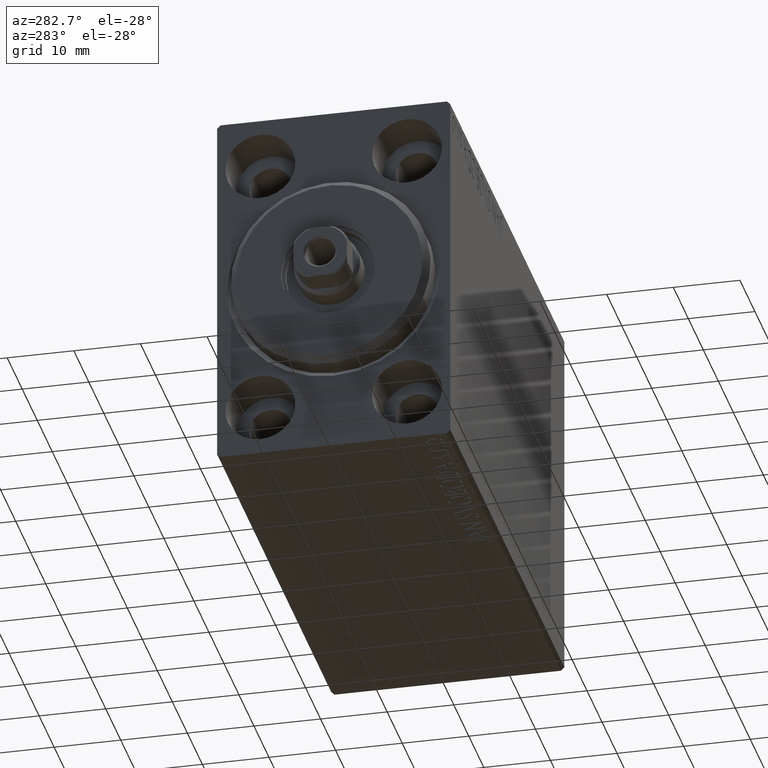
[diagram: clean part render]
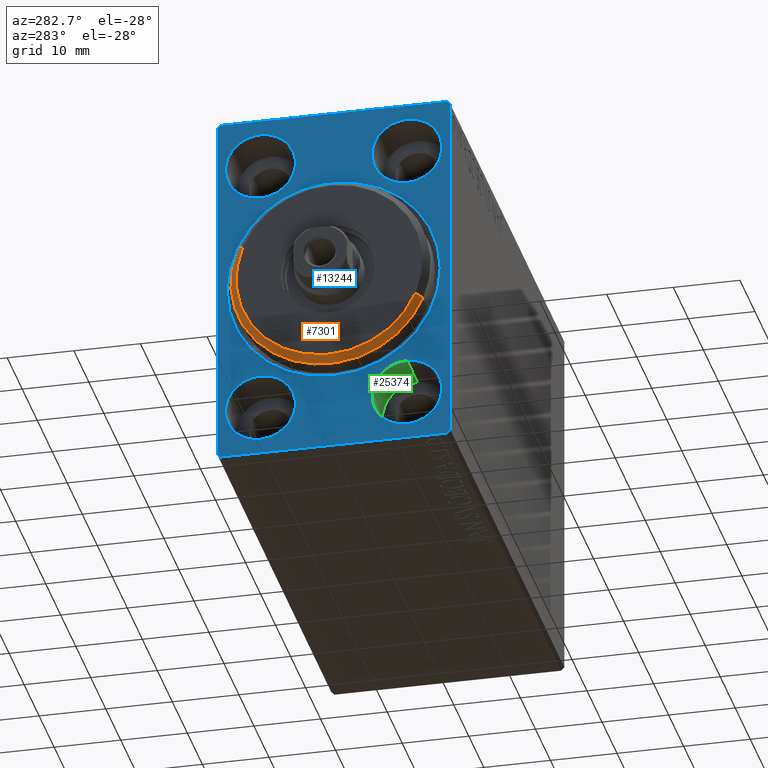
[diagram: same view with three faces highlighted in distinct colors, each labeled with its STEP entity id]
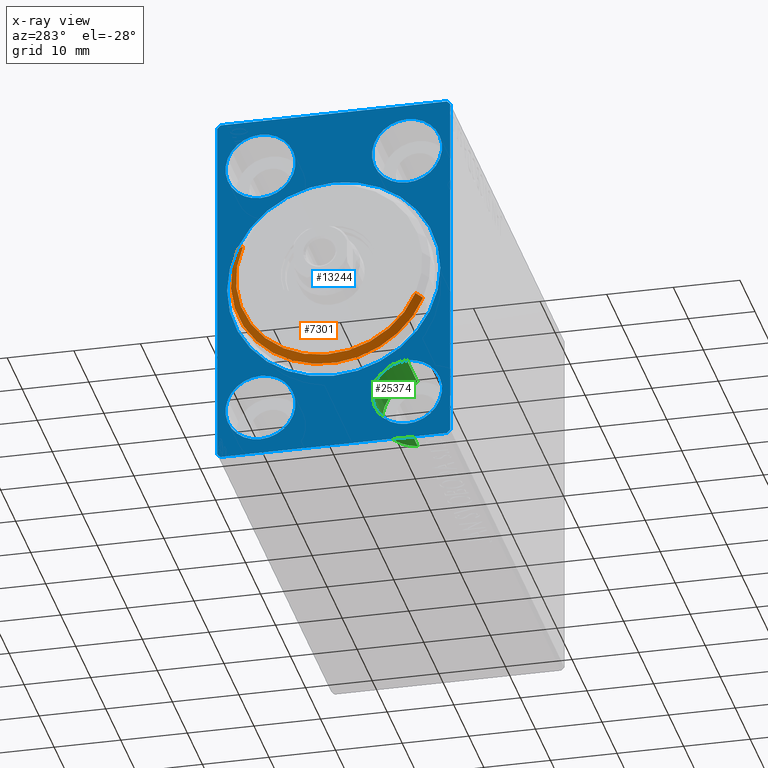
[diagram: x-ray of the same camera — body ghosted, the three highlighted faces saturated]
A machine part, auxiliary view with three faces highlighted in distinct colors.
The next image is the same camera in x-ray (body ghosted, the three faces saturated) — at least one of them is partly hidden behind the body in this view.
Their STEP definitions:

[orange] entity #7301 — the highlighted conical surface has half-angle 45 deg.
#272 = AXIS2_PLACEMENT_3D ( 'NONE', #19315, #5992, #42836 ) ;
#689 = VERTEX_POINT ( 'NONE', #29659 ) ;
#3453 = EDGE_CURVE ( 'NONE', #3816, #41143, #7987, .T. ) ;
#3816 = VERTEX_POINT ( 'NONE', #20330 ) ;
#5336 = CARTESIAN_POINT ( 'NONE',  ( 3.000000000000000000, 0.000000000000000000, 0.000000000000000000 ) ) ;
#5384 = VECTOR ( 'NONE', #23247, 999.9999999999998863 ) ;
#5764 = FACE_OUTER_BOUND ( 'NONE', #27287, .T. ) ;
#5992 = DIRECTION ( 'NONE',  ( -1.000000000000000000, 0.000000000000000000, 0.000000000000000000 ) ) ;
#7301 = ADVANCED_FACE ( 'NONE', ( #5764 ), #43905, .T. ) ;
#7987 = LINE ( 'NONE', #28190, #28839 ) ;
#10771 = CARTESIAN_POINT ( 'NONE',  ( 1.999999999999995781, 0.000000000000000000, 15.00000000000000000 ) ) ;
#11911 = ORIENTED_EDGE ( 'NONE', *, *, #3453, .F. ) ;
#12074 = ORIENTED_EDGE ( 'NONE', *, *, #24086, .F. ) ;
#12810 = LINE ( 'NONE', #42553, #5384 ) ;
#14400 = AXIS2_PLACEMENT_3D ( 'NONE', #14627, #42359, #21736 ) ;
#14627 = CARTESIAN_POINT ( 'NONE',  ( 3.000000000000000000, 0.000000000000000000, 0.000000000000000000 ) ) ;
#15602 = CARTESIAN_POINT ( 'NONE',  ( 3.000000000000000000, 1.775737858763662015E-15, -13.99999999999999645 ) ) ;
#18870 = DIRECTION ( 'NONE',  ( 0.000000000000000000, 0.000000000000000000, 1.000000000000000000 ) ) ;
#18946 = ORIENTED_EDGE ( 'NONE', *, *, #21428, .F. ) ;
#19315 = CARTESIAN_POINT ( 'NONE',  ( 1.999999999999995781, 0.000000000000000000, 0.000000000000000000 ) ) ;
#20330 = CARTESIAN_POINT ( 'NONE',  ( 3.000000000000000000, 0.000000000000000000, 13.99999999999999645 ) ) ;
#21428 = EDGE_CURVE ( 'NONE', #24592, #3816, #34227, .T. ) ;
#21736 = DIRECTION ( 'NONE',  ( 0.000000000000000000, 0.000000000000000000, -1.000000000000000000 ) ) ;
#21751 = DIRECTION ( 'NONE',  ( -0.7071067811865482389, 0.000000000000000000, 0.7071067811865469066 ) ) ;
#22659 = AXIS2_PLACEMENT_3D ( 'NONE', #5336, #36383, #18870 ) ;
#23247 = DIRECTION ( 'NONE',  ( -0.7071067811865482389, 8.659560562354926695E-17, -0.7071067811865469066 ) ) ;
#24086 = EDGE_CURVE ( 'NONE', #41143, #689, #33612, .T. ) ;
#24592 = VERTEX_POINT ( 'NONE', #15602 ) ;
#27287 = EDGE_LOOP ( 'NONE', ( #18946, #30788, #12074, #11911 ) ) ;
#28190 = CARTESIAN_POINT ( 'NONE',  ( 3.000000000000000000, 0.000000000000000000, 13.99999999999999645 ) ) ;
#28839 = VECTOR ( 'NONE', #21751, 999.9999999999998863 ) ;
#29327 = EDGE_CURVE ( 'NONE', #24592, #689, #12810, .T. ) ;
#29659 = CARTESIAN_POINT ( 'NONE',  ( 1.999999999999995781, 1.836970198721029589E-15, -15.00000000000000000 ) ) ;
#30788 = ORIENTED_EDGE ( 'NONE', *, *, #29327, .T. ) ;
#33612 = CIRCLE ( 'NONE', #272, 15.00000000000000000 ) ;
#34227 = CIRCLE ( 'NONE', #14400, 13.99999999999999645 ) ;
#36383 = DIRECTION ( 'NONE',  ( -1.000000000000000000, 0.000000000000000000, 0.000000000000000000 ) ) ;
#41143 = VERTEX_POINT ( 'NONE', #10771 ) ;
#42359 = DIRECTION ( 'NONE',  ( 1.000000000000000000, -0.000000000000000000, 0.000000000000000000 ) ) ;
#42553 = CARTESIAN_POINT ( 'NONE',  ( 3.000000000000000000, 1.714505518806294244E-15, -13.99999999999999645 ) ) ;
#42836 = DIRECTION ( 'NONE',  ( 0.000000000000000000, 0.000000000000000000, -1.000000000000000000 ) ) ;
#43905 = CONICAL_SURFACE ( 'NONE', #22659, 13.99999999999999645, 0.7853981633974473908 ) ;

[blue] entity #13244 — the highlighted planar face has unit normal (1, 0, 0).
#795 = EDGE_CURVE ( 'NONE', #22448, #39961, #15193, .T. ) ;
#875 = DIRECTION ( 'NONE',  ( -1.000000000000000000, 0.000000000000000000, 0.000000000000000000 ) ) ;
#1468 = VECTOR ( 'NONE', #38831, 1000.000000000000114 ) ;
#1495 = DIRECTION ( 'NONE',  ( 0.000000000000000000, 0.000000000000000000, -1.000000000000000000 ) ) ;
#1570 = AXIS2_PLACEMENT_3D ( 'NONE', #3988, #875, #34387 ) ;
#1776 = EDGE_CURVE ( 'NONE', #6416, #13975, #30773, .T. ) ;
#2337 = EDGE_CURVE ( 'NONE', #12014, #24352, #18323, .T. ) ;
#2428 = CIRCLE ( 'NONE', #42826, 5.250000000000000888 ) ;
#3218 = FACE_BOUND ( 'NONE', #30657, .T. ) ;
#3432 = ORIENTED_EDGE ( 'NONE', *, *, #12959, .T. ) ;
#3827 = AXIS2_PLACEMENT_3D ( 'NONE', #17806, #24712, #21143 ) ;
#3875 = FACE_OUTER_BOUND ( 'NONE', #37636, .T. ) ;
#3980 = EDGE_CURVE ( 'NONE', #42905, #38104, #41606, .T. ) ;
#3988 = CARTESIAN_POINT ( 'NONE',  ( 0.000000000000000000, 11.00000000000000355, 20.00000000000000000 ) ) ;
#4113 = ORIENTED_EDGE ( 'NONE', *, *, #17300, .F. ) ;
#4154 = ORIENTED_EDGE ( 'NONE', *, *, #39955, .T. ) ;
#4402 = EDGE_CURVE ( 'NONE', #14114, #24352, #21251, .T. ) ;
#4443 = CARTESIAN_POINT ( 'NONE',  ( 0.000000000000000000, 0.000000000000000000, 16.00000000000002842 ) ) ;
#4518 = CARTESIAN_POINT ( 'NONE',  ( 0.000000000000000000, -11.00000000000000355, -20.00000000000000000 ) ) ;
#4874 = DIRECTION ( 'NONE',  ( 0.000000000000000000, 0.000000000000000000, 1.000000000000000000 ) ) ;
#5027 = CIRCLE ( 'NONE', #35465, 16.00000000000002842 ) ;
#5033 = CARTESIAN_POINT ( 'NONE',  ( 0.000000000000000000, 11.00000000000000355, -14.75000000000000000 ) ) ;
#5321 = DIRECTION ( 'NONE',  ( 1.000000000000000000, 0.000000000000000000, 0.000000000000000000 ) ) ;
#5998 = CARTESIAN_POINT ( 'NONE',  ( 0.000000000000000000, -16.99999999999998579, 27.49999999999999645 ) ) ;
#6138 = VECTOR ( 'NONE', #1495, 1000.000000000000000 ) ;
#6416 = VERTEX_POINT ( 'NONE', #39762 ) ;
#6826 = AXIS2_PLACEMENT_3D ( 'NONE', #41201, #42085, #19004 ) ;
#6987 = PLANE ( 'NONE',  #10759 ) ;
#7911 = AXIS2_PLACEMENT_3D ( 'NONE', #4518, #24727, #14282 ) ;
#8367 = ORIENTED_EDGE ( 'NONE', *, *, #30627, .F. ) ;
#8764 = DIRECTION ( 'NONE',  ( 0.000000000000000000, 0.000000000000000000, 1.000000000000000000 ) ) ;
#8841 = EDGE_CURVE ( 'NONE', #12014, #27658, #14087, .T. ) ;
#9155 = ORIENTED_EDGE ( 'NONE', *, *, #14922, .F. ) ;
#10759 = AXIS2_PLACEMENT_3D ( 'NONE', #36947, #16754, #43830 ) ;
#11207 = CARTESIAN_POINT ( 'NONE',  ( 0.000000000000000000, 17.50000000000000711, -27.50000000000000355 ) ) ;
#11314 = LINE ( 'NONE', #21970, #1468 ) ;
#11468 = CARTESIAN_POINT ( 'NONE',  ( 0.000000000000000000, 17.50000000000000000, 27.00000000000000355 ) ) ;
#11999 = DIRECTION ( 'NONE',  ( 0.000000000000000000, -1.000000000000000000, -1.982541115402065110E-16 ) ) ;
#12014 = VERTEX_POINT ( 'NONE', #32102 ) ;
#12959 = EDGE_CURVE ( 'NONE', #42905, #27658, #23485, .T. ) ;
#13244 = ADVANCED_FACE ( 'NONE', ( #30307, #3218, #23431, #40505, #17407, #3875 ), #6987, .F. ) ;
#13467 = DIRECTION ( 'NONE',  ( -0.000000000000000000, 0.7071067811865474617, 0.7071067811865474617 ) ) ;
#13918 = CARTESIAN_POINT ( 'NONE',  ( 0.000000000000000000, 17.50000000000000711, -27.00000000000000355 ) ) ;
#13975 = VERTEX_POINT ( 'NONE', #4443 ) ;
#14087 = LINE ( 'NONE', #40947, #29103 ) ;
#14093 = CARTESIAN_POINT ( 'NONE',  ( 0.000000000000000000, 11.00000000000000355, -20.00000000000000000 ) ) ;
#14114 = VERTEX_POINT ( 'NONE', #43248 ) ;
#14282 = DIRECTION ( 'NONE',  ( 0.000000000000000000, 0.000000000000000000, 1.000000000000000000 ) ) ;
#14922 = EDGE_CURVE ( 'NONE', #36980, #24918, #32620, .T. ) ;
#15100 = VERTEX_POINT ( 'NONE', #27497 ) ;
#15193 = CIRCLE ( 'NONE', #28667, 5.250000000000000888 ) ;
#15226 = ORIENTED_EDGE ( 'NONE', *, *, #795, .F. ) ;
#15523 = CARTESIAN_POINT ( 'NONE',  ( 0.000000000000000000, 0.000000000000000000, 0.000000000000000000 ) ) ;
#15839 = CARTESIAN_POINT ( 'NONE',  ( 0.000000000000000000, -11.00000000000000355, 20.00000000000000000 ) ) ;
#16021 = CIRCLE ( 'NONE', #6826, 5.250000000000000888 ) ;
#16093 = ORIENTED_EDGE ( 'NONE', *, *, #39790, .T. ) ;
#16430 = ORIENTED_EDGE ( 'NONE', *, *, #35008, .F. ) ;
#16442 = CARTESIAN_POINT ( 'NONE',  ( 0.000000000000000000, 11.00000000000000355, -20.00000000000000000 ) ) ;
#16744 = VECTOR ( 'NONE', #34941, 1000.000000000000000 ) ;
#16754 = DIRECTION ( 'NONE',  ( 1.000000000000000000, 0.000000000000000000, 0.000000000000000000 ) ) ;
#17081 = EDGE_LOOP ( 'NONE', ( #8367, #41263 ) ) ;
#17300 = EDGE_CURVE ( 'NONE', #15100, #32168, #41235, .T. ) ;
#17407 = FACE_BOUND ( 'NONE', #22808, .T. ) ;
#17806 = CARTESIAN_POINT ( 'NONE',  ( 0.000000000000000000, 0.000000000000000000, 0.000000000000000000 ) ) ;
#18099 = DIRECTION ( 'NONE',  ( -0.000000000000000000, -0.7071067811865378028, 0.7071067811865573427 ) ) ;
#18323 = LINE ( 'NONE', #28320, #25137 ) ;
#18629 = CARTESIAN_POINT ( 'NONE',  ( 0.000000000000000000, -11.00000000000000355, 20.00000000000000000 ) ) ;
#19004 = DIRECTION ( 'NONE',  ( 0.000000000000000000, 0.000000000000000000, 1.000000000000000000 ) ) ;
#19862 = ORIENTED_EDGE ( 'NONE', *, *, #35625, .F. ) ;
#20992 = CIRCLE ( 'NONE', #31643, 5.250000000000000888 ) ;
#21143 = DIRECTION ( 'NONE',  ( 0.000000000000000000, 0.000000000000000000, -1.000000000000000000 ) ) ;
#21251 = LINE ( 'NONE', #41665, #6138 ) ;
#21529 = CARTESIAN_POINT ( 'NONE',  ( 0.000000000000000000, 11.00000000000000355, 14.75000000000000000 ) ) ;
#21970 = CARTESIAN_POINT ( 'NONE',  ( 0.000000000000000000, 17.00000000000000000, 27.50000000000000355 ) ) ;
#22192 = DIRECTION ( 'NONE',  ( 0.000000000000000000, 0.000000000000000000, -1.000000000000000000 ) ) ;
#22414 = CARTESIAN_POINT ( 'NONE',  ( 0.000000000000000000, -11.00000000000000355, 25.25000000000000000 ) ) ;
#22448 = VERTEX_POINT ( 'NONE', #5033 ) ;
#22470 = ORIENTED_EDGE ( 'NONE', *, *, #3980, .F. ) ;
#22808 = EDGE_LOOP ( 'NONE', ( #4113, #16430 ) ) ;
#22827 = AXIS2_PLACEMENT_3D ( 'NONE', #18629, #35266, #4874 ) ;
#23431 = FACE_BOUND ( 'NONE', #17081, .T. ) ;
#23474 = ORIENTED_EDGE ( 'NONE', *, *, #42493, .T. ) ;
#23485 = LINE ( 'NONE', #13918, #39131 ) ;
#23516 = EDGE_CURVE ( 'NONE', #39961, #22448, #2428, .T. ) ;
#23666 = DIRECTION ( 'NONE',  ( 0.000000000000000000, 1.000000000000000000, 0.000000000000000000 ) ) ;
#24352 = VERTEX_POINT ( 'NONE', #30727 ) ;
#24435 = CARTESIAN_POINT ( 'NONE',  ( 0.000000000000000000, 17.00000000000000711, -27.50000000000000355 ) ) ;
#24564 = ORIENTED_EDGE ( 'NONE', *, *, #8841, .F. ) ;
#24712 = DIRECTION ( 'NONE',  ( 1.000000000000000000, 0.000000000000000000, 0.000000000000000000 ) ) ;
#24727 = DIRECTION ( 'NONE',  ( -1.000000000000000000, 0.000000000000000000, 0.000000000000000000 ) ) ;
#24918 = VERTEX_POINT ( 'NONE', #5998 ) ;
#25137 = VECTOR ( 'NONE', #18099, 1000.000000000000000 ) ;
#25799 = DIRECTION ( 'NONE',  ( 0.000000000000000000, 0.000000000000000000, 1.000000000000000000 ) ) ;
#26134 = ORIENTED_EDGE ( 'NONE', *, *, #1776, .T. ) ;
#27497 = CARTESIAN_POINT ( 'NONE',  ( 0.000000000000000000, -11.00000000000000355, -14.75000000000000000 ) ) ;
#27638 = DIRECTION ( 'NONE',  ( -1.000000000000000000, 0.000000000000000000, 0.000000000000000000 ) ) ;
#27658 = VERTEX_POINT ( 'NONE', #24435 ) ;
#27886 = VERTEX_POINT ( 'NONE', #22414 ) ;
#28195 = CARTESIAN_POINT ( 'NONE',  ( 0.000000000000000000, -11.00000000000000355, -25.25000000000000000 ) ) ;
#28320 = CARTESIAN_POINT ( 'NONE',  ( 0.000000000000000000, -17.00000000000001421, -27.50000000000000355 ) ) ;
#28667 = AXIS2_PLACEMENT_3D ( 'NONE', #16442, #29996, #35158 ) ;
#28838 = AXIS2_PLACEMENT_3D ( 'NONE', #42647, #32657, #25799 ) ;
#29103 = VECTOR ( 'NONE', #23666, 1000.000000000000000 ) ;
#29215 = CIRCLE ( 'NONE', #1570, 5.250000000000000888 ) ;
#29252 = CARTESIAN_POINT ( 'NONE',  ( 0.000000000000000000, 17.00000000000000000, 27.50000000000000355 ) ) ;
#29996 = DIRECTION ( 'NONE',  ( -1.000000000000000000, 0.000000000000000000, 0.000000000000000000 ) ) ;
#30307 = FACE_BOUND ( 'NONE', #40185, .T. ) ;
#30627 = EDGE_CURVE ( 'NONE', #27886, #33722, #20992, .T. ) ;
#30657 = EDGE_LOOP ( 'NONE', ( #15226, #38388 ) ) ;
#30727 = CARTESIAN_POINT ( 'NONE',  ( 0.000000000000000000, -17.50000000000000000, -27.00000000000000355 ) ) ;
#30773 = CIRCLE ( 'NONE', #3827, 16.00000000000002842 ) ;
#31350 = CARTESIAN_POINT ( 'NONE',  ( 0.000000000000000000, 11.00000000000000355, 25.25000000000000000 ) ) ;
#31643 = AXIS2_PLACEMENT_3D ( 'NONE', #15839, #38929, #8764 ) ;
#32102 = CARTESIAN_POINT ( 'NONE',  ( 0.000000000000000000, -17.00000000000001421, -27.50000000000000355 ) ) ;
#32168 = VERTEX_POINT ( 'NONE', #28195 ) ;
#32189 = VERTEX_POINT ( 'NONE', #21529 ) ;
#32399 = CARTESIAN_POINT ( 'NONE',  ( 0.000000000000000000, 11.00000000000000355, -25.25000000000000000 ) ) ;
#32620 = LINE ( 'NONE', #35506, #37030 ) ;
#32657 = DIRECTION ( 'NONE',  ( -1.000000000000000000, 0.000000000000000000, 0.000000000000000000 ) ) ;
#33067 = VERTEX_POINT ( 'NONE', #31350 ) ;
#33722 = VERTEX_POINT ( 'NONE', #37151 ) ;
#34387 = DIRECTION ( 'NONE',  ( 0.000000000000000000, 0.000000000000000000, 1.000000000000000000 ) ) ;
#34535 = DIRECTION ( 'NONE',  ( 0.000000000000000000, -0.7071067811865474617, -0.7071067811865474617 ) ) ;
#34941 = DIRECTION ( 'NONE',  ( 0.000000000000000000, -1.261617073437677752E-16, 1.000000000000000000 ) ) ;
#35008 = EDGE_CURVE ( 'NONE', #32168, #15100, #16021, .T. ) ;
#35158 = DIRECTION ( 'NONE',  ( 0.000000000000000000, 0.000000000000000000, 1.000000000000000000 ) ) ;
#35266 = DIRECTION ( 'NONE',  ( -1.000000000000000000, 0.000000000000000000, 0.000000000000000000 ) ) ;
#35465 = AXIS2_PLACEMENT_3D ( 'NONE', #15523, #5321, #22192 ) ;
#35506 = CARTESIAN_POINT ( 'NONE',  ( 0.000000000000000000, 17.50000000000000000, 27.50000000000000355 ) ) ;
#35625 = EDGE_CURVE ( 'NONE', #32189, #33067, #35909, .T. ) ;
#35909 = CIRCLE ( 'NONE', #28838, 5.250000000000000888 ) ;
#36761 = LINE ( 'NONE', #43862, #42628 ) ;
#36947 = CARTESIAN_POINT ( 'NONE',  ( 0.000000000000000000, 0.000000000000000000, 0.000000000000000000 ) ) ;
#36980 = VERTEX_POINT ( 'NONE', #29252 ) ;
#37030 = VECTOR ( 'NONE', #11999, 1000.000000000000000 ) ;
#37151 = CARTESIAN_POINT ( 'NONE',  ( 0.000000000000000000, -11.00000000000000355, 14.75000000000000000 ) ) ;
#37636 = EDGE_LOOP ( 'NONE', ( #41695, #23474, #9155, #16093, #22470, #3432, #24564, #41392 ) ) ;
#38104 = VERTEX_POINT ( 'NONE', #11468 ) ;
#38388 = ORIENTED_EDGE ( 'NONE', *, *, #23516, .F. ) ;
#38677 = EDGE_LOOP ( 'NONE', ( #43435, #19862 ) ) ;
#38831 = DIRECTION ( 'NONE',  ( -0.000000000000000000, 0.7071067811865474617, -0.7071067811865474617 ) ) ;
#38929 = DIRECTION ( 'NONE',  ( -1.000000000000000000, 0.000000000000000000, 0.000000000000000000 ) ) ;
#39116 = CIRCLE ( 'NONE', #22827, 5.250000000000000888 ) ;
#39131 = VECTOR ( 'NONE', #34535, 1000.000000000000114 ) ;
#39762 = CARTESIAN_POINT ( 'NONE',  ( 0.000000000000000000, 1.959434878635768681E-15, -16.00000000000002842 ) ) ;
#39790 = EDGE_CURVE ( 'NONE', #36980, #38104, #11314, .T. ) ;
#39955 = EDGE_CURVE ( 'NONE', #13975, #6416, #5027, .T. ) ;
#39961 = VERTEX_POINT ( 'NONE', #32399 ) ;
#40185 = EDGE_LOOP ( 'NONE', ( #4154, #26134 ) ) ;
#40505 = FACE_BOUND ( 'NONE', #38677, .T. ) ;
#40947 = CARTESIAN_POINT ( 'NONE',  ( 0.000000000000000000, -17.50000000000000000, -27.50000000000000355 ) ) ;
#41163 = DIRECTION ( 'NONE',  ( 0.000000000000000000, 0.000000000000000000, 1.000000000000000000 ) ) ;
#41201 = CARTESIAN_POINT ( 'NONE',  ( 0.000000000000000000, -11.00000000000000355, -20.00000000000000000 ) ) ;
#41235 = CIRCLE ( 'NONE', #7911, 5.250000000000000888 ) ;
#41263 = ORIENTED_EDGE ( 'NONE', *, *, #43508, .F. ) ;
#41392 = ORIENTED_EDGE ( 'NONE', *, *, #2337, .T. ) ;
#41606 = LINE ( 'NONE', #11207, #16744 ) ;
#41665 = CARTESIAN_POINT ( 'NONE',  ( 0.000000000000000000, -17.50000000000000000, 27.49999999999999645 ) ) ;
#41695 = ORIENTED_EDGE ( 'NONE', *, *, #4402, .F. ) ;
#42085 = DIRECTION ( 'NONE',  ( -1.000000000000000000, 0.000000000000000000, 0.000000000000000000 ) ) ;
#42493 = EDGE_CURVE ( 'NONE', #14114, #24918, #36761, .T. ) ;
#42617 = CARTESIAN_POINT ( 'NONE',  ( 0.000000000000000000, 17.50000000000000711, -27.00000000000000355 ) ) ;
#42628 = VECTOR ( 'NONE', #13467, 1000.000000000000114 ) ;
#42647 = CARTESIAN_POINT ( 'NONE',  ( 0.000000000000000000, 11.00000000000000355, 20.00000000000000000 ) ) ;
#42826 = AXIS2_PLACEMENT_3D ( 'NONE', #14093, #27638, #41163 ) ;
#42905 = VERTEX_POINT ( 'NONE', #42617 ) ;
#43248 = CARTESIAN_POINT ( 'NONE',  ( 0.000000000000000000, -17.50000000000000000, 26.99999999999998224 ) ) ;
#43391 = EDGE_CURVE ( 'NONE', #33067, #32189, #29215, .T. ) ;
#43435 = ORIENTED_EDGE ( 'NONE', *, *, #43391, .F. ) ;
#43508 = EDGE_CURVE ( 'NONE', #33722, #27886, #39116, .T. ) ;
#43830 = DIRECTION ( 'NONE',  ( 0.000000000000000000, 0.000000000000000000, -1.000000000000000000 ) ) ;
#43862 = CARTESIAN_POINT ( 'NONE',  ( 0.000000000000000000, -17.50000000000000000, 26.99999999999998224 ) ) ;

[green] entity #25374 — the highlighted cylindrical surface (edge-blend (fillet) strip) has radius 5.25 mm, axis along (-1, -0, -0).
#131 = DIRECTION ( 'NONE',  ( -1.000000000000000000, 0.000000000000000000, 0.000000000000000000 ) ) ;
#2826 = DIRECTION ( 'NONE',  ( 0.000000000000000000, 0.000000000000000000, 1.000000000000000000 ) ) ;
#3161 = AXIS2_PLACEMENT_3D ( 'NONE', #12395, #33452, #2826 ) ;
#3589 = EDGE_CURVE ( 'NONE', #37557, #32168, #34339, .T. ) ;
#4518 = CARTESIAN_POINT ( 'NONE',  ( 0.000000000000000000, -11.00000000000000355, -20.00000000000000000 ) ) ;
#4971 = ORIENTED_EDGE ( 'NONE', *, *, #14560, .T. ) ;
#7830 = LINE ( 'NONE', #34894, #22847 ) ;
#7911 = AXIS2_PLACEMENT_3D ( 'NONE', #4518, #24727, #14282 ) ;
#8701 = VERTEX_POINT ( 'NONE', #9679 ) ;
#9523 = EDGE_CURVE ( 'NONE', #8701, #37557, #17762, .T. ) ;
#9679 = CARTESIAN_POINT ( 'NONE',  ( 7.000000000000000000, -11.00000000000000355, -14.75000000000000000 ) ) ;
#9714 = FACE_OUTER_BOUND ( 'NONE', #35062, .T. ) ;
#12395 = CARTESIAN_POINT ( 'NONE',  ( 7.000000000000000000, -11.00000000000000355, -20.00000000000000000 ) ) ;
#13157 = ORIENTED_EDGE ( 'NONE', *, *, #3589, .F. ) ;
#13893 = DIRECTION ( 'NONE',  ( -1.000000000000000000, -0.000000000000000000, -0.000000000000000000 ) ) ;
#14282 = DIRECTION ( 'NONE',  ( 0.000000000000000000, 0.000000000000000000, 1.000000000000000000 ) ) ;
#14316 = DIRECTION ( 'NONE',  ( 0.000000000000000000, 0.000000000000000000, 1.000000000000000000 ) ) ;
#14560 = EDGE_CURVE ( 'NONE', #8701, #15100, #7830, .T. ) ;
#15100 = VERTEX_POINT ( 'NONE', #27497 ) ;
#17300 = EDGE_CURVE ( 'NONE', #15100, #32168, #41235, .T. ) ;
#17762 = CIRCLE ( 'NONE', #22023, 5.250000000000000888 ) ;
#20761 = CARTESIAN_POINT ( 'NONE',  ( 7.000000000000000000, -11.00000000000000355, -20.00000000000000000 ) ) ;
#22023 = AXIS2_PLACEMENT_3D ( 'NONE', #20761, #131, #14316 ) ;
#22847 = VECTOR ( 'NONE', #13893, 1000.000000000000000 ) ;
#24727 = DIRECTION ( 'NONE',  ( -1.000000000000000000, 0.000000000000000000, 0.000000000000000000 ) ) ;
#25374 = ADVANCED_FACE ( 'NONE', ( #9714 ), #39895, .F. ) ;
#26657 = CARTESIAN_POINT ( 'NONE',  ( 7.000000000000000000, -11.00000000000000355, -25.25000000000000000 ) ) ;
#27497 = CARTESIAN_POINT ( 'NONE',  ( 0.000000000000000000, -11.00000000000000355, -14.75000000000000000 ) ) ;
#28195 = CARTESIAN_POINT ( 'NONE',  ( 0.000000000000000000, -11.00000000000000355, -25.25000000000000000 ) ) ;
#30802 = CARTESIAN_POINT ( 'NONE',  ( 7.000000000000000000, -11.00000000000000355, -25.25000000000000000 ) ) ;
#30883 = ORIENTED_EDGE ( 'NONE', *, *, #9523, .F. ) ;
#32168 = VERTEX_POINT ( 'NONE', #28195 ) ;
#33452 = DIRECTION ( 'NONE',  ( -1.000000000000000000, -0.000000000000000000, -0.000000000000000000 ) ) ;
#33767 = VECTOR ( 'NONE', #40142, 1000.000000000000000 ) ;
#34339 = LINE ( 'NONE', #30802, #33767 ) ;
#34894 = CARTESIAN_POINT ( 'NONE',  ( 7.000000000000000000, -11.00000000000000355, -14.75000000000000000 ) ) ;
#35062 = EDGE_LOOP ( 'NONE', ( #13157, #30883, #4971, #35801 ) ) ;
#35801 = ORIENTED_EDGE ( 'NONE', *, *, #17300, .T. ) ;
#37557 = VERTEX_POINT ( 'NONE', #26657 ) ;
#39895 = CYLINDRICAL_SURFACE ( 'NONE', #3161, 5.250000000000000888 ) ;
#40142 = DIRECTION ( 'NONE',  ( -1.000000000000000000, -0.000000000000000000, -0.000000000000000000 ) ) ;
#41235 = CIRCLE ( 'NONE', #7911, 5.250000000000000888 ) ;